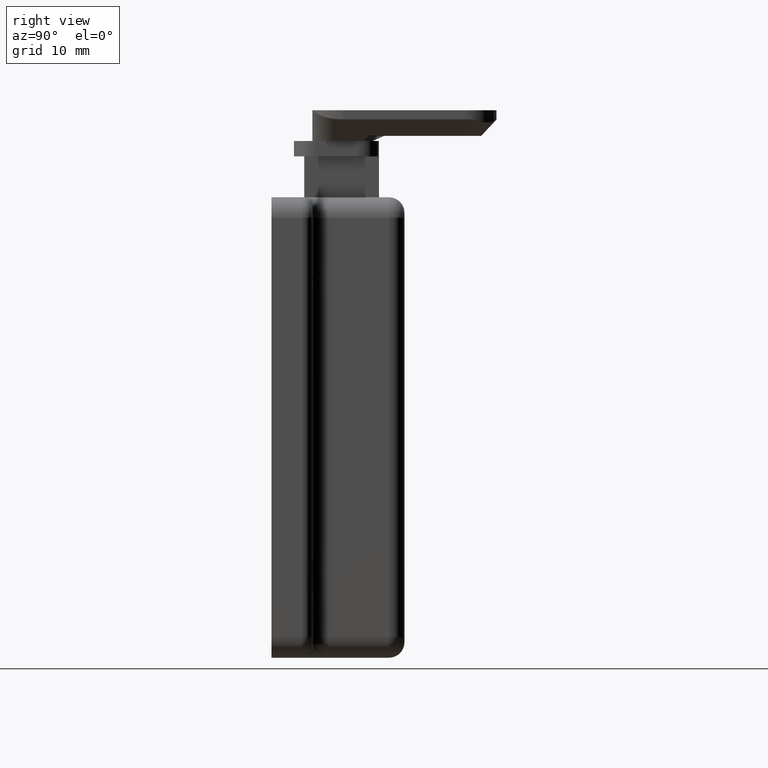
[diagram: clean part render]
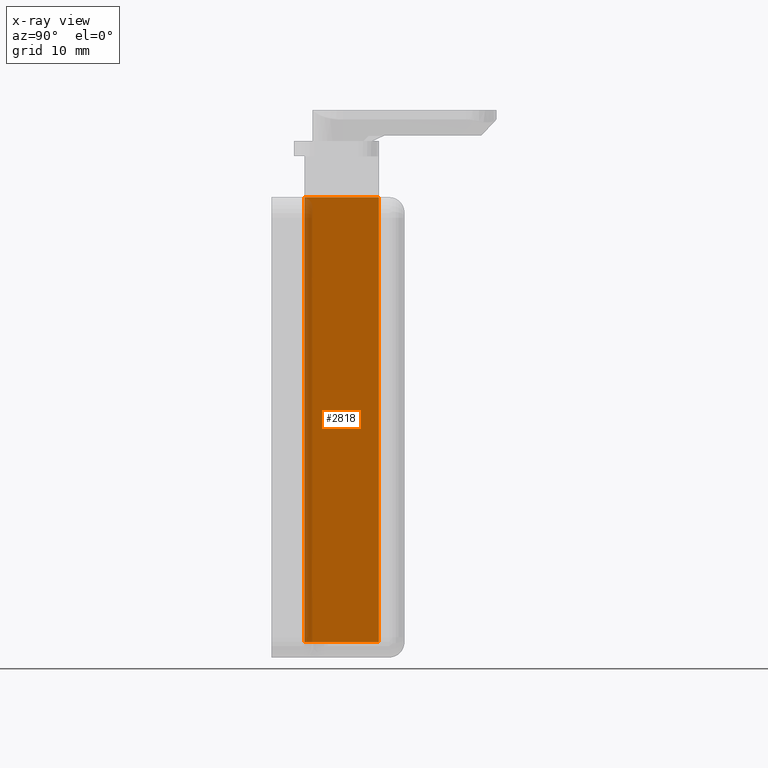
[diagram: x-ray — body ghosted, one internal face saturated and labeled with its STEP entity id]
A machine part, right view, then the same camera in x-ray: the body is ghosted and one INTERNAL B-rep face — a face not visible from any outside direction — is saturated and labeled: STEP entity #2818.
In plain terms, the highlighted planar face has unit normal (1, 0, 0).
Its self-contained STEP definition (entity closure, byte-faithful):
#3 = VERTEX_POINT ( 'NONE', #5431 ) ;
#240 = VERTEX_POINT ( 'NONE', #4409 ) ;
#641 = ORIENTED_EDGE ( 'NONE', *, *, #2243, .F. ) ;
#901 = CARTESIAN_POINT ( 'NONE',  ( 10.00000000000000000, -44.99998499999996700, 3.199997000000000200 ) ) ;
#927 = CARTESIAN_POINT ( 'NONE',  ( 10.00000000000000000, -44.99998499999996700, 3.199997000000000200 ) ) ;
#1006 = DIRECTION ( 'NONE',  ( 0.0000000000000000000, 0.0000000000000000000, 1.000000000000000000 ) ) ;
#1027 = DIRECTION ( 'NONE',  ( 0.0000000000000000000, 0.0000000000000000000, -1.000000000000000000 ) ) ;
#1144 = VECTOR ( 'NONE', #6366, 1000.000000000000000 ) ;
#1415 = LINE ( 'NONE', #4320, #5961 ) ;
#1457 = DIRECTION ( 'NONE',  ( 0.0000000000000000000, 0.0000000000000000000, 1.000000000000000000 ) ) ;
#1651 = VECTOR ( 'NONE', #1457, 1000.000000000000000 ) ;
#2243 = EDGE_CURVE ( 'NONE', #3, #240, #2734, .T. ) ;
#2257 = VERTEX_POINT ( 'NONE', #4687 ) ;
#2330 = LINE ( 'NONE', #3247, #3715 ) ;
#2532 = EDGE_CURVE ( 'NONE', #240, #7516, #1415, .T. ) ;
#2606 = LINE ( 'NONE', #3372, #5586 ) ;
#2734 = LINE ( 'NONE', #3394, #1144 ) ;
#2818 = ADVANCED_FACE ( 'NONE', ( #3086 ), #3992, .F. ) ;
#3086 = FACE_OUTER_BOUND ( 'NONE', #3479, .T. ) ;
#3137 = DIRECTION ( 'NONE',  ( -0.0000000000000000000, -1.000000000000000000, -0.0000000000000000000 ) ) ;
#3247 = CARTESIAN_POINT ( 'NONE',  ( 10.00000000000000000, -1.500000000000001300, 3.199997000000000200 ) ) ;
#3372 = CARTESIAN_POINT ( 'NONE',  ( 10.00000000000000000, -44.99998499999996700, 3.199997000000000200 ) ) ;
#3394 = CARTESIAN_POINT ( 'NONE',  ( 10.00000000000000000, -1.500000000000001300, 3.199997000000000200 ) ) ;
#3479 = EDGE_LOOP ( 'NONE', ( #3903, #5740, #6422, #641, #4466 ) ) ;
#3715 = VECTOR ( 'NONE', #6186, 1000.000000000000000 ) ;
#3865 = EDGE_CURVE ( 'NONE', #3, #5288, #2330, .T. ) ;
#3903 = ORIENTED_EDGE ( 'NONE', *, *, #5471, .T. ) ;
#3992 = PLANE ( 'NONE',  #6654 ) ;
#4320 = CARTESIAN_POINT ( 'NONE',  ( 10.00000000000000000, -1.500000000000001300, 10.50000000000000000 ) ) ;
#4409 = CARTESIAN_POINT ( 'NONE',  ( 10.00000000000000000, -1.500000000000001300, 10.50000000000000000 ) ) ;
#4466 = ORIENTED_EDGE ( 'NONE', *, *, #3865, .T. ) ;
#4610 = DIRECTION ( 'NONE',  ( 1.000000000000000000, 0.0000000000000000000, 0.0000000000000000000 ) ) ;
#4687 = CARTESIAN_POINT ( 'NONE',  ( 10.00000000000000000, -44.99998499999996700, 5.500000000000000000 ) ) ;
#4830 = LINE ( 'NONE', #901, #1651 ) ;
#5288 = VERTEX_POINT ( 'NONE', #927 ) ;
#5431 = CARTESIAN_POINT ( 'NONE',  ( 10.00000000000000000, -1.500000000000001300, 3.199997000000000200 ) ) ;
#5471 = EDGE_CURVE ( 'NONE', #5288, #2257, #2606, .T. ) ;
#5586 = VECTOR ( 'NONE', #1006, 1000.000000000000000 ) ;
#5740 = ORIENTED_EDGE ( 'NONE', *, *, #6528, .T. ) ;
#5753 = CARTESIAN_POINT ( 'NONE',  ( 10.00000000000000000, -1.500000000000001300, 3.199997000000000200 ) ) ;
#5896 = CARTESIAN_POINT ( 'NONE',  ( 10.00000000000000000, -44.99998499999996700, 10.50000000000000000 ) ) ;
#5961 = VECTOR ( 'NONE', #3137, 1000.000000000000000 ) ;
#6186 = DIRECTION ( 'NONE',  ( -0.0000000000000000000, -1.000000000000000000, -0.0000000000000000000 ) ) ;
#6366 = DIRECTION ( 'NONE',  ( 0.0000000000000000000, 0.0000000000000000000, 1.000000000000000000 ) ) ;
#6422 = ORIENTED_EDGE ( 'NONE', *, *, #2532, .F. ) ;
#6528 = EDGE_CURVE ( 'NONE', #2257, #7516, #4830, .T. ) ;
#6654 = AXIS2_PLACEMENT_3D ( 'NONE', #5753, #4610, #1027 ) ;
#7516 = VERTEX_POINT ( 'NONE', #5896 ) ;